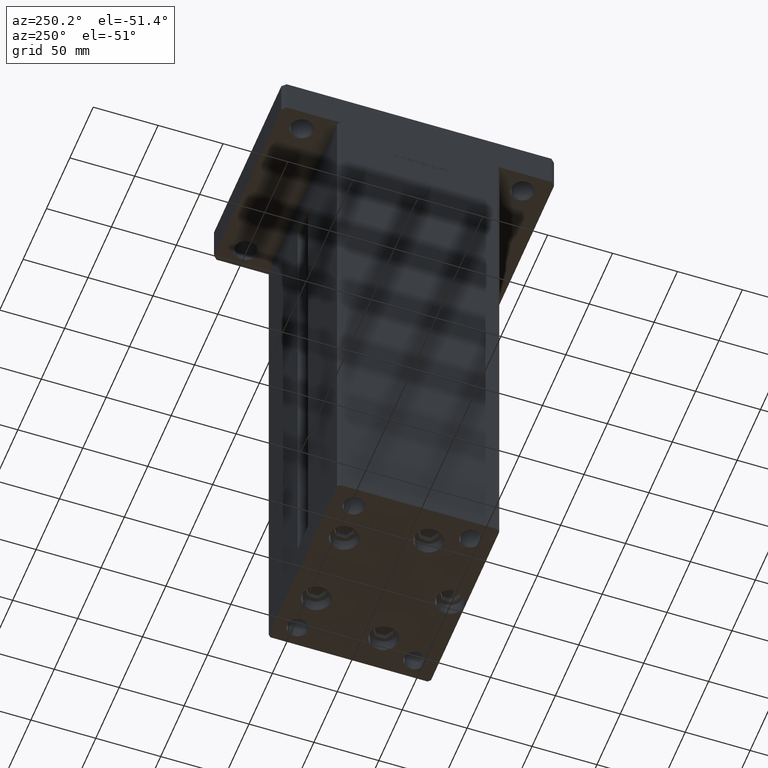
[diagram: clean part render]
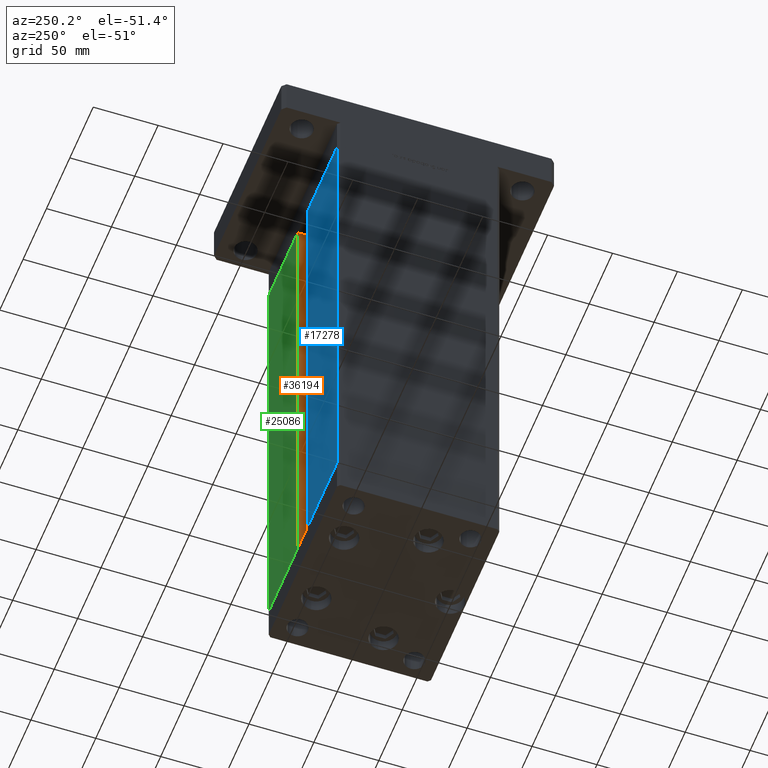
[diagram: same view with three faces highlighted in distinct colors, each labeled with its STEP entity id]
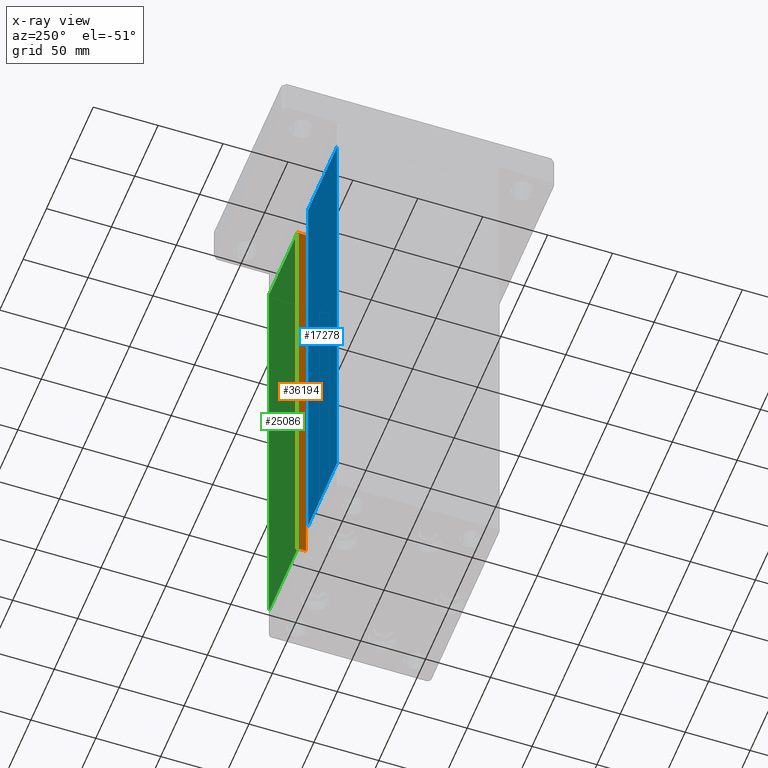
[diagram: x-ray of the same camera — body ghosted, the three highlighted faces saturated]
A machine part, auxiliary view with three faces highlighted in distinct colors.
The next image is the same camera in x-ray (body ghosted, the three faces saturated) — at least one of them is partly hidden behind the body in this view.
Their STEP definitions:

[orange] entity #36194 — the highlighted planar face has unit normal (1, 0, 0).
#1441 = DIRECTION ( 'NONE',  ( 0.000000000000000000, 1.000000000000000000, 0.000000000000000000 ) ) ;
#2189 = VERTEX_POINT ( 'NONE', #26655 ) ;
#3229 = LINE ( 'NONE', #20000, #32118 ) ;
#8741 = DIRECTION ( 'NONE',  ( -0.000000000000000000, -0.000000000000000000, 1.000000000000000000 ) ) ;
#9304 = LINE ( 'NONE', #43134, #27013 ) ;
#10580 = DIRECTION ( 'NONE',  ( -0.000000000000000000, -0.000000000000000000, 1.000000000000000000 ) ) ;
#13430 = ORIENTED_EDGE ( 'NONE', *, *, #34746, .F. ) ;
#13644 = CARTESIAN_POINT ( 'NONE',  ( 11.25000000000000178, 62.49999999999999289, 0.000000000000000000 ) ) ;
#14083 = VECTOR ( 'NONE', #8741, 1000.000000000000000 ) ;
#14714 = EDGE_CURVE ( 'NONE', #2189, #33252, #3229, .T. ) ;
#15464 = EDGE_LOOP ( 'NONE', ( #13430, #49445, #34933, #34078 ) ) ;
#17395 = LINE ( 'NONE', #24438, #14083 ) ;
#17546 = AXIS2_PLACEMENT_3D ( 'NONE', #19981, #43849, #36233 ) ;
#19981 = CARTESIAN_POINT ( 'NONE',  ( 11.25000000000000178, 55.99999999999999289, 0.000000000000000000 ) ) ;
#20000 = CARTESIAN_POINT ( 'NONE',  ( 11.25000000000000178, 55.99999999999999289, 0.000000000000000000 ) ) ;
#24438 = CARTESIAN_POINT ( 'NONE',  ( 11.25000000000000178, 62.49999999999999289, 0.000000000000000000 ) ) ;
#26655 = CARTESIAN_POINT ( 'NONE',  ( 11.25000000000000178, 55.99999999999999289, 0.000000000000000000 ) ) ;
#27013 = VECTOR ( 'NONE', #1441, 1000.000000000000000 ) ;
#27768 = VECTOR ( 'NONE', #52309, 1000.000000000000000 ) ;
#27907 = LINE ( 'NONE', #28170, #27768 ) ;
#28170 = CARTESIAN_POINT ( 'NONE',  ( 11.25000000000000178, 0.000000000000000000, 367.0000000000000000 ) ) ;
#30532 = VERTEX_POINT ( 'NONE', #13644 ) ;
#31778 = EDGE_CURVE ( 'NONE', #43305, #33252, #27907, .T. ) ;
#32118 = VECTOR ( 'NONE', #10580, 1000.000000000000000 ) ;
#33252 = VERTEX_POINT ( 'NONE', #51127 ) ;
#33832 = EDGE_CURVE ( 'NONE', #2189, #30532, #9304, .T. ) ;
#34078 = ORIENTED_EDGE ( 'NONE', *, *, #31778, .F. ) ;
#34746 = EDGE_CURVE ( 'NONE', #30532, #43305, #17395, .T. ) ;
#34933 = ORIENTED_EDGE ( 'NONE', *, *, #14714, .T. ) ;
#35709 = CARTESIAN_POINT ( 'NONE',  ( 11.24999999999999467, 62.49999999999999289, 367.0000000000000000 ) ) ;
#36194 = ADVANCED_FACE ( 'NONE', ( #44380 ), #40566, .F. ) ;
#36233 = DIRECTION ( 'NONE',  ( 0.000000000000000000, 0.000000000000000000, -1.000000000000000000 ) ) ;
#40566 = PLANE ( 'NONE',  #17546 ) ;
#43134 = CARTESIAN_POINT ( 'NONE',  ( 11.25000000000000178, 55.99999999999999289, 0.000000000000000000 ) ) ;
#43305 = VERTEX_POINT ( 'NONE', #35709 ) ;
#43849 = DIRECTION ( 'NONE',  ( 1.000000000000000000, -0.000000000000000000, 0.000000000000000000 ) ) ;
#44380 = FACE_OUTER_BOUND ( 'NONE', #15464, .T. ) ;
#49445 = ORIENTED_EDGE ( 'NONE', *, *, #33832, .F. ) ;
#51127 = CARTESIAN_POINT ( 'NONE',  ( 11.25000000000000178, 55.99999999999999289, 367.0000000000000000 ) ) ;
#52309 = DIRECTION ( 'NONE',  ( -0.000000000000000000, -1.000000000000000000, 0.000000000000000000 ) ) ;

[blue] entity #17278 — the highlighted planar face has unit normal (-0, -1, 0).
#2206 = LINE ( 'NONE', #46908, #43901 ) ;
#2720 = EDGE_CURVE ( 'NONE', #43719, #32982, #50620, .T. ) ;
#3943 = EDGE_CURVE ( 'NONE', #36783, #32982, #2206, .T. ) ;
#5645 = EDGE_CURVE ( 'NONE', #43719, #29147, #33889, .T. ) ;
#8043 = CARTESIAN_POINT ( 'NONE',  ( -11.25000000000000178, 62.49999999999999289, 367.0000000000000000 ) ) ;
#8691 = CARTESIAN_POINT ( 'NONE',  ( -73.00000000000001421, 62.50000000000000000, 367.0000000000000000 ) ) ;
#9259 = DIRECTION ( 'NONE',  ( -0.000000000000000000, -0.000000000000000000, 1.000000000000000000 ) ) ;
#10866 = DIRECTION ( 'NONE',  ( -0.000000000000000000, -0.000000000000000000, -1.000000000000000000 ) ) ;
#11038 = LINE ( 'NONE', #8043, #45191 ) ;
#12521 = DIRECTION ( 'NONE',  ( -1.000000000000000000, 1.123707514802790025E-16, 0.000000000000000000 ) ) ;
#15159 = CARTESIAN_POINT ( 'NONE',  ( -73.00000000000001421, 62.50000000000000000, 0.000000000000000000 ) ) ;
#15446 = VECTOR ( 'NONE', #12521, 1000.000000000000000 ) ;
#15637 = PLANE ( 'NONE',  #27864 ) ;
#17278 = ADVANCED_FACE ( 'NONE', ( #21905 ), #15637, .F. ) ;
#21905 = FACE_OUTER_BOUND ( 'NONE', #30597, .T. ) ;
#23481 = DIRECTION ( 'NONE',  ( 1.000000000000000000, 0.000000000000000000, 0.000000000000000000 ) ) ;
#23755 = DIRECTION ( 'NONE',  ( -1.123707514802790025E-16, -1.000000000000000000, 0.000000000000000000 ) ) ;
#27864 = AXIS2_PLACEMENT_3D ( 'NONE', #40273, #23755, #35938 ) ;
#29147 = VERTEX_POINT ( 'NONE', #42468 ) ;
#30224 = ORIENTED_EDGE ( 'NONE', *, *, #3943, .F. ) ;
#30597 = EDGE_LOOP ( 'NONE', ( #47937, #50050, #40627, #30224 ) ) ;
#32982 = VERTEX_POINT ( 'NONE', #15159 ) ;
#33348 = CARTESIAN_POINT ( 'NONE',  ( -11.25000000000000178, 62.49999999999999289, 0.000000000000000000 ) ) ;
#33889 = LINE ( 'NONE', #50426, #41341 ) ;
#34192 = EDGE_CURVE ( 'NONE', #36783, #29147, #11038, .T. ) ;
#35938 = DIRECTION ( 'NONE',  ( 1.000000000000000000, -1.123707514802790025E-16, 0.000000000000000000 ) ) ;
#36783 = VERTEX_POINT ( 'NONE', #8691 ) ;
#40273 = CARTESIAN_POINT ( 'NONE',  ( -11.25000000000000178, 62.49999999999999289, 367.0000000000000000 ) ) ;
#40627 = ORIENTED_EDGE ( 'NONE', *, *, #2720, .T. ) ;
#41341 = VECTOR ( 'NONE', #9259, 1000.000000000000000 ) ;
#42468 = CARTESIAN_POINT ( 'NONE',  ( -11.25000000000000178, 62.49999999999999289, 367.0000000000000000 ) ) ;
#43658 = CARTESIAN_POINT ( 'NONE',  ( -11.25000000000000178, 62.49999999999999289, 0.000000000000000000 ) ) ;
#43719 = VERTEX_POINT ( 'NONE', #43658 ) ;
#43901 = VECTOR ( 'NONE', #10866, 1000.000000000000000 ) ;
#45191 = VECTOR ( 'NONE', #23481, 1000.000000000000000 ) ;
#46908 = CARTESIAN_POINT ( 'NONE',  ( -73.00000000000001421, 62.50000000000000000, 367.0000000000000000 ) ) ;
#47937 = ORIENTED_EDGE ( 'NONE', *, *, #34192, .T. ) ;
#50050 = ORIENTED_EDGE ( 'NONE', *, *, #5645, .F. ) ;
#50426 = CARTESIAN_POINT ( 'NONE',  ( -11.25000000000000178, 62.49999999999999289, 0.000000000000000000 ) ) ;
#50620 = LINE ( 'NONE', #33348, #15446 ) ;

[green] entity #25086 — the highlighted planar face has unit normal (-0, -1, 0).
#822 = CARTESIAN_POINT ( 'NONE',  ( -11.25000000000000178, 62.49999999999999289, 367.0000000000000000 ) ) ;
#1007 = ORIENTED_EDGE ( 'NONE', *, *, #29111, .T. ) ;
#5424 = LINE ( 'NONE', #822, #44138 ) ;
#5941 = ORIENTED_EDGE ( 'NONE', *, *, #18950, .T. ) ;
#6327 = VECTOR ( 'NONE', #51652, 1000.000000000000000 ) ;
#6426 = DIRECTION ( 'NONE',  ( -1.000000000000000000, 1.123707514802790025E-16, 0.000000000000000000 ) ) ;
#8378 = CARTESIAN_POINT ( 'NONE',  ( -11.25000000000000178, 62.49999999999999289, 367.0000000000000000 ) ) ;
#8654 = DIRECTION ( 'NONE',  ( -1.123707514802790025E-16, -1.000000000000000000, 0.000000000000000000 ) ) ;
#8741 = DIRECTION ( 'NONE',  ( -0.000000000000000000, -0.000000000000000000, 1.000000000000000000 ) ) ;
#11128 = CARTESIAN_POINT ( 'NONE',  ( 73.00000000000001421, 62.50000000000000000, 367.0000000000000000 ) ) ;
#13644 = CARTESIAN_POINT ( 'NONE',  ( 11.25000000000000178, 62.49999999999999289, 0.000000000000000000 ) ) ;
#14006 = VECTOR ( 'NONE', #6426, 1000.000000000000000 ) ;
#14083 = VECTOR ( 'NONE', #8741, 1000.000000000000000 ) ;
#15606 = CARTESIAN_POINT ( 'NONE',  ( 73.00000000000001421, 62.50000000000000000, 367.0000000000000000 ) ) ;
#17280 = EDGE_LOOP ( 'NONE', ( #39516, #23687, #1007, #5941 ) ) ;
#17395 = LINE ( 'NONE', #24438, #14083 ) ;
#17575 = FACE_OUTER_BOUND ( 'NONE', #17280, .T. ) ;
#17834 = PLANE ( 'NONE',  #47634 ) ;
#18603 = LINE ( 'NONE', #15606, #6327 ) ;
#18950 = EDGE_CURVE ( 'NONE', #34939, #24613, #18603, .T. ) ;
#19880 = CARTESIAN_POINT ( 'NONE',  ( 73.00000000000001421, 62.50000000000000000, 0.000000000000000000 ) ) ;
#23460 = LINE ( 'NONE', #32102, #14006 ) ;
#23687 = ORIENTED_EDGE ( 'NONE', *, *, #34746, .T. ) ;
#24438 = CARTESIAN_POINT ( 'NONE',  ( 11.25000000000000178, 62.49999999999999289, 0.000000000000000000 ) ) ;
#24613 = VERTEX_POINT ( 'NONE', #19880 ) ;
#25086 = ADVANCED_FACE ( 'NONE', ( #17575 ), #17834, .F. ) ;
#29111 = EDGE_CURVE ( 'NONE', #43305, #34939, #5424, .T. ) ;
#30532 = VERTEX_POINT ( 'NONE', #13644 ) ;
#32102 = CARTESIAN_POINT ( 'NONE',  ( -11.25000000000000178, 62.49999999999999289, 0.000000000000000000 ) ) ;
#32271 = EDGE_CURVE ( 'NONE', #24613, #30532, #23460, .T. ) ;
#33822 = DIRECTION ( 'NONE',  ( 1.000000000000000000, -1.123707514802790025E-16, 0.000000000000000000 ) ) ;
#34746 = EDGE_CURVE ( 'NONE', #30532, #43305, #17395, .T. ) ;
#34939 = VERTEX_POINT ( 'NONE', #11128 ) ;
#35709 = CARTESIAN_POINT ( 'NONE',  ( 11.24999999999999467, 62.49999999999999289, 367.0000000000000000 ) ) ;
#37630 = DIRECTION ( 'NONE',  ( 1.000000000000000000, 0.000000000000000000, 0.000000000000000000 ) ) ;
#39516 = ORIENTED_EDGE ( 'NONE', *, *, #32271, .T. ) ;
#43305 = VERTEX_POINT ( 'NONE', #35709 ) ;
#44138 = VECTOR ( 'NONE', #37630, 1000.000000000000000 ) ;
#47634 = AXIS2_PLACEMENT_3D ( 'NONE', #8378, #8654, #33822 ) ;
#51652 = DIRECTION ( 'NONE',  ( -0.000000000000000000, -0.000000000000000000, -1.000000000000000000 ) ) ;